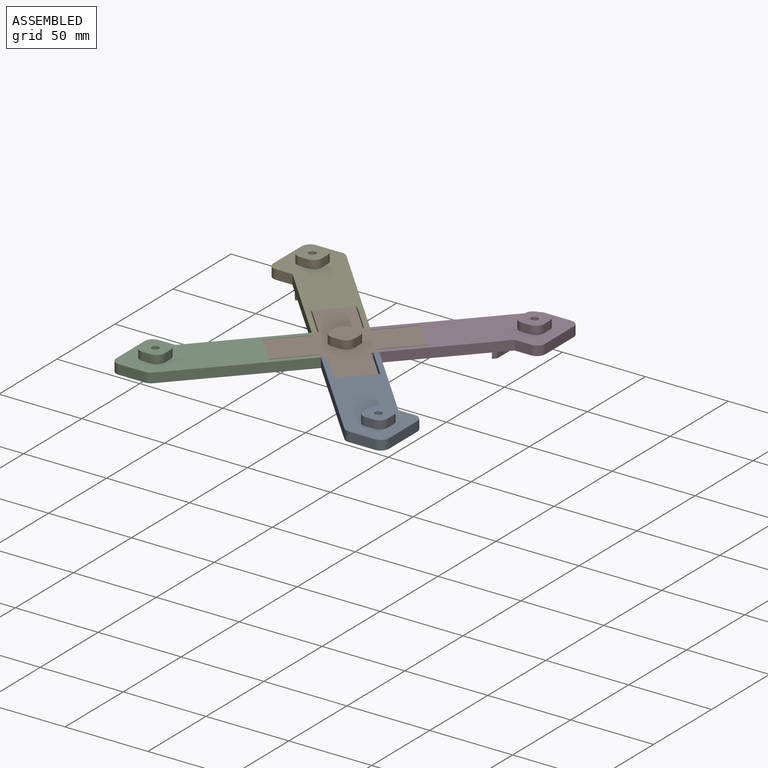
[diagram: assembled view]
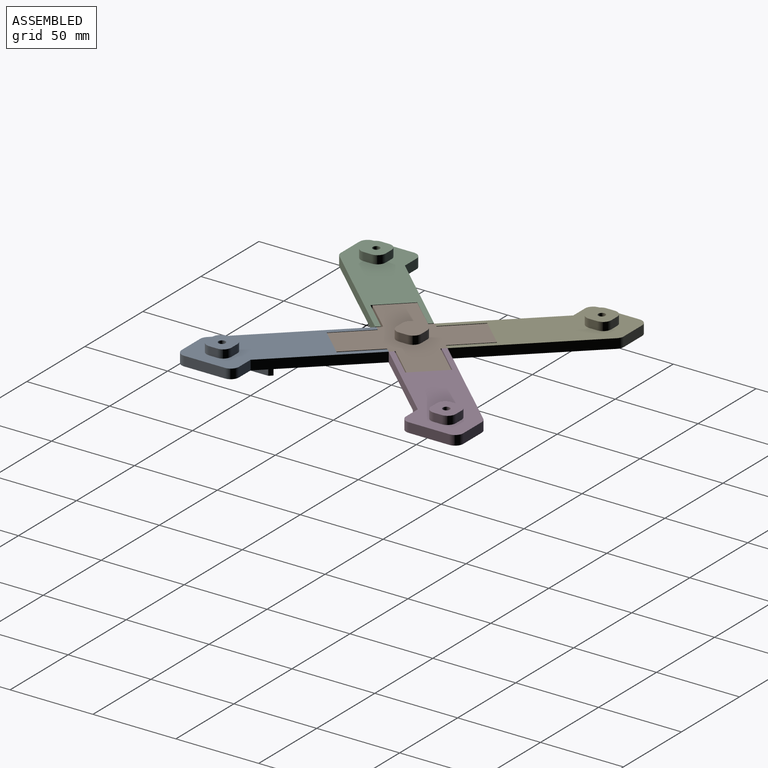
[diagram: assembled view, second angle]
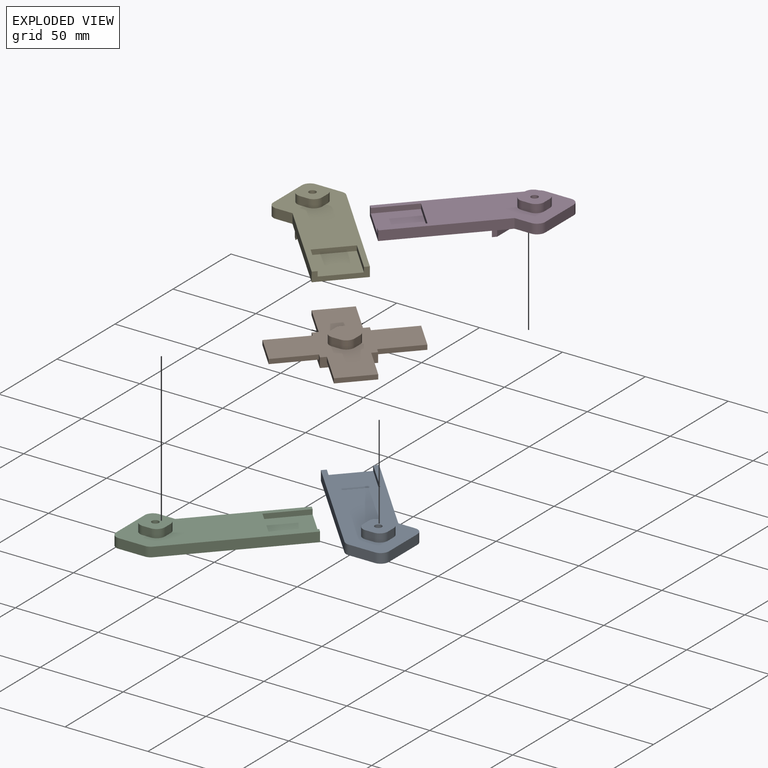
[diagram: exploded view]
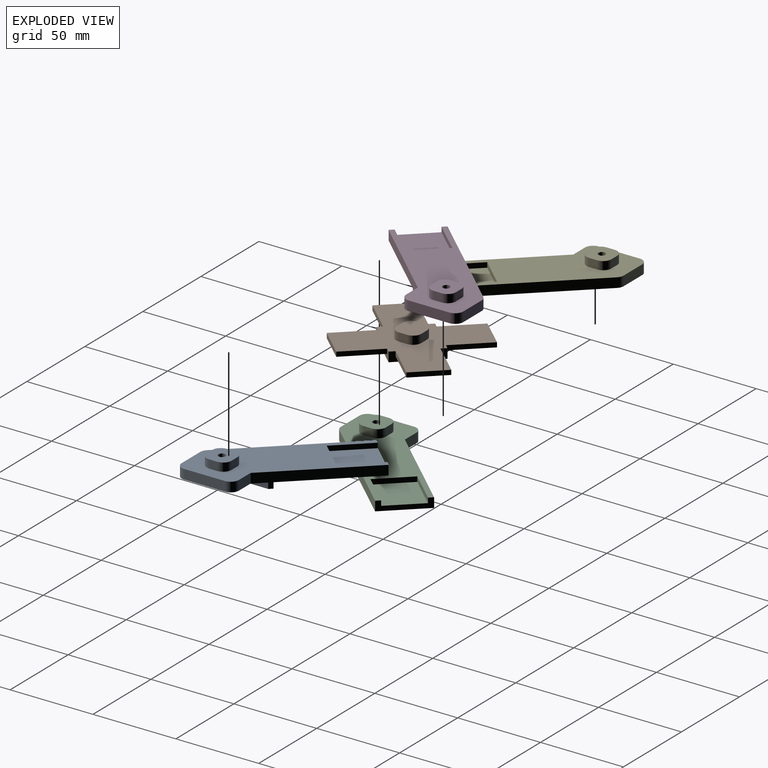
[diagram: exploded view, second angle]
ASSEMBLY  parts=5 mates=2
PART A: 29 faces, bbox 82x85x14.3 mm
  f0: plane 85x82mm, normal (0,0,1), area 2131.3mm2, adj f1,f2,f3,f4,f5,f6,f12,f13
  f1: plane 21.55x20.04mm, normal (0.73,-0.68,0), area 100.5mm2, adj f0,f5,f6,f7,f12,f14,f15
  f2: plane 15.82x5.8mm, normal (0,1,0), area 91.8mm2, adj f0,f7,f26,f28
  f3: plane 24.5x5.8mm, normal (-1,0,0), area 142.1mm2, adj f0,f7,f26,f27
  f4: plane 10x5.8mm, normal (0,-1,0), area 58mm2, adj f0,f5,f7,f27
  f5: plane 50.5x46.96mm, normal (-0.73,-0.68,0), area 409.2mm2, adj f0,f1,f4,f7,f9,f10,f11
  f6: plane 61.85x57.52mm, normal (0.73,0.68,0), area 489.9mm2, adj f0,f1,f7,f28
  f7: plane 85x82mm, normal (0,0,-1), area 2872.6mm2, adj f1,f2,f3,f4,f5,f6,f8,f9
  f8: plane 3.5x1.8mm, normal (0,1,0), area 6.3mm2, adj f7,f9,f10,f11
  f9: plane 23.89x3.5mm, normal (1,0,0), area 83.6mm2, adj f5,f7,f8,f11
  f10: plane 21.95x3.5mm, normal (-1,0,0), area 76.8mm2, adj f5,f7,f8,f11
  f11: plane 23.89x1.8mm, normal (0,0,-1), area 41.3mm2, adj f5,f8,f9,f10
  f12: plane 18.59x17.29mm, normal (-0.73,-0.68,0), area 76.2mm2, adj f0,f1,f13,f15
  f13: plane 17.15x15.94mm, normal (0.73,-0.68,0), area 70.2mm2, adj f0,f12,f14,f15
  f14: plane 18.59x17.29mm, normal (0.73,0.68,0), area 76.2mm2, adj f0,f1,f13,f15
  f15: plane 35.74x33.23mm, normal (0,0,1), area 592.9mm2, adj f1,f12,f13,f14
  f16: plane 5x5mm, normal (1,0,0), area 25mm2, adj f0,f20,f22,f25
  f17: plane 5x5mm, normal (0,1,0), area 25mm2, adj f0,f20,f22,f23
  f18: plane 5x5mm, normal (-1,0,0), area 25mm2, adj f0,f20,f23,f24
  f19: plane 5x5mm, normal (0,-1,0), area 25mm2, adj f0,f20,f24,f25
  f20: plane 15x15mm, normal (0,0,1), area 189.7mm2, adj f16,f17,f18,f19,f21,f22,f23,f24
  f21: cylinder r=2.1mm len=10.8mm, axis (0,0,1), area 142.5mm2, adj f7,f20
  f22: cylinder r=5mm len=5mm, axis (0,0,1), area 39.3mm2, adj f0,f16,f17,f20
  f23: cylinder r=5mm len=5mm, axis (0,0,-1), area 39.3mm2, adj f0,f17,f18,f20
  f24: cylinder r=5mm len=5mm, axis (0,0,1), area 39.3mm2, adj f0,f18,f19,f20
  f25: cylinder r=5mm len=5mm, axis (0,0,-1), area 39.3mm2, adj f0,f16,f19,f20
  f26: cylinder r=5mm len=5.8mm, axis (0,0,1), area 45.6mm2, adj f0,f2,f3,f7
  f27: cylinder r=5mm len=5.8mm, axis (0,0,-1), area 45.6mm2, adj f0,f3,f4,f7
  f28: cylinder r=5mm len=5.8mm, axis (0,0,-1), area 23.8mm2, adj f0,f2,f6,f7
PART B: 31 faces, bbox 69.9x75.2x10.8 mm
  f0: plane 75.15x69.88mm, normal (0,0,1), area 2930.4mm2, adj f1,f2,f3,f5,f6,f7,f8,f9
  f1: plane 16.41x15.26mm, normal (0.73,0.68,0), area 62.8mm2, adj f0,f15,f17,f18
  f2: plane 21.55x20.04mm, normal (-0.73,0.68,0), area 107.9mm2, adj f0,f4,f8,f11,f14,f16,f20
  f3: plane 16.41x15.26mm, normal (-0.73,-0.68,0), area 62.8mm2, adj f0,f12,f13,f19
  f4: plane 43.1x40.08mm, normal (0,0,-1), area 863.8mm2, adj f2,f7,f14,f16
  f5: plane 16.41x15.26mm, normal (-0.73,0.68,0), area 62.8mm2, adj f0,f8,f11,f20
  f6: plane 16.41x15.26mm, normal (0.73,-0.68,0), area 62.8mm2, adj f0,f9,f10,f21
  f7: plane 21.55x20.04mm, normal (0.73,-0.68,0), area 107.9mm2, adj f0,f4,f9,f10,f14,f16,f21
  f8: plane 18.59x17.29mm, normal (-0.73,-0.68,0), area 71.1mm2, adj f0,f2,f5,f20
  f9: plane 18.59x17.29mm, normal (0.73,0.68,0), area 71.1mm2, adj f0,f6,f7,f21
  f10: plane 18.59x17.29mm, normal (-0.73,-0.68,0), area 71.1mm2, adj f0,f6,f7,f21
  f11: plane 18.59x17.29mm, normal (0.73,0.68,0), area 71.1mm2, adj f0,f2,f5,f20
  f12: plane 18.59x17.29mm, normal (-0.73,0.68,0), area 71.1mm2, adj f0,f3,f14,f19
  f13: plane 18.59x17.29mm, normal (0.73,-0.68,0), area 71.1mm2, adj f0,f3,f14,f19
  f14: plane 21.55x20.04mm, normal (-0.73,-0.68,0), area 107.9mm2, adj f0,f2,f4,f7,f12,f13,f19
  f15: plane 18.59x17.29mm, normal (0.73,-0.68,0), area 71.1mm2, adj f0,f1,f16,f18
  f16: plane 21.55x20.04mm, normal (0.73,0.68,0), area 107.9mm2, adj f0,f2,f4,f7,f15,f17,f18
  f17: plane 18.59x17.29mm, normal (-0.73,0.68,0), area 71.1mm2, adj f0,f1,f16,f18
  f18: plane 35.01x32.55mm, normal (0,0,-1), area 567.5mm2, adj f1,f15,f16,f17
  f19: plane 35.01x32.55mm, normal (0,0,-1), area 567.5mm2, adj f3,f12,f13,f14
  f20: plane 35.01x32.55mm, normal (0,0,-1), area 567.5mm2, adj f2,f5,f8,f11
  f21: plane 35.01x32.55mm, normal (0,0,-1), area 567.5mm2, adj f6,f7,f9,f10
  f22: plane 5x5mm, normal (0,1,0), area 25mm2, adj f0,f26,f27,f30
  f23: plane 5x5mm, normal (-1,0,0), area 25mm2, adj f0,f26,f27,f28
  f24: plane 5x5mm, normal (0,-1,0), area 25mm2, adj f0,f26,f28,f29
  f25: plane 5x5mm, normal (1,0,0), area 25mm2, adj f0,f26,f29,f30
  f26: plane 15x15mm, normal (0,0,1), area 203.5mm2, adj f22,f23,f24,f25,f27,f28,f29,f30
  f27: cylinder r=5mm len=5mm, axis (0,0,1), area 39.3mm2, adj f0,f22,f23,f26
  f28: cylinder r=5mm len=5mm, axis (0,0,-1), area 39.3mm2, adj f0,f23,f24,f26
  f29: cylinder r=5mm len=5mm, axis (0,0,1), area 39.3mm2, adj f0,f24,f25,f26
  f30: cylinder r=5mm len=5mm, axis (0,0,-1), area 39.3mm2, adj f0,f22,f25,f26
PART C: 29 faces, bbox 82x85x14.3 mm
  f0: plane 85x82mm, normal (0,0,1), area 2131.3mm2, adj f1,f2,f3,f4,f5,f6,f12,f13
  f1: plane 21.55x20.04mm, normal (-0.73,-0.68,0), area 100.5mm2, adj f0,f5,f6,f7,f12,f14,f15
  f2: plane 15.82x5.8mm, normal (0,1,0), area 91.8mm2, adj f0,f7,f26,f28
  f3: plane 24.5x5.8mm, normal (1,0,0), area 142.1mm2, adj f0,f7,f26,f27
  f4: plane 10x5.8mm, normal (0,-1,0), area 58mm2, adj f0,f5,f7,f27
  f5: plane 50.5x46.96mm, normal (0.73,-0.68,0), area 409.2mm2, adj f0,f1,f4,f7,f9,f10,f11
  f6: plane 61.85x57.52mm, normal (-0.73,0.68,0), area 489.9mm2, adj f0,f1,f7,f28
  f7: plane 85x82mm, normal (0,0,-1), area 2872.6mm2, adj f1,f2,f3,f4,f5,f6,f8,f9
  f8: plane 3.5x1.8mm, normal (0,1,0), area 6.3mm2, adj f7,f9,f10,f11
  f9: plane 23.89x3.5mm, normal (-1,0,0), area 83.6mm2, adj f5,f7,f8,f11
  f10: plane 21.95x3.5mm, normal (1,0,0), area 76.8mm2, adj f5,f7,f8,f11
  f11: plane 23.89x1.8mm, normal (0,0,-1), area 41.3mm2, adj f5,f8,f9,f10
  f12: plane 18.59x17.29mm, normal (0.73,-0.68,0), area 76.2mm2, adj f0,f1,f13,f15
  f13: plane 17.15x15.94mm, normal (-0.73,-0.68,0), area 70.2mm2, adj f0,f12,f14,f15
  f14: plane 18.59x17.29mm, normal (-0.73,0.68,0), area 76.2mm2, adj f0,f1,f13,f15
  f15: plane 35.74x33.23mm, normal (0,0,1), area 592.9mm2, adj f1,f12,f13,f14
  f16: plane 5x5mm, normal (-1,0,0), area 25mm2, adj f0,f20,f22,f25
  f17: plane 5x5mm, normal (0,1,0), area 25mm2, adj f0,f20,f22,f23
  f18: plane 5x5mm, normal (1,0,0), area 25mm2, adj f0,f20,f23,f24
  f19: plane 5x5mm, normal (0,-1,0), area 25mm2, adj f0,f20,f24,f25
  f20: plane 15x15mm, normal (0,0,1), area 189.7mm2, adj f16,f17,f18,f19,f21,f22,f23,f24
  f21: cylinder r=2.1mm len=10.8mm, axis (0,0,1), area 142.5mm2, adj f7,f20
  f22: cylinder r=5mm len=5mm, axis (0,0,1), area 39.3mm2, adj f0,f16,f17,f20
  f23: cylinder r=5mm len=5mm, axis (0,0,-1), area 39.3mm2, adj f0,f17,f18,f20
  f24: cylinder r=5mm len=5mm, axis (0,0,1), area 39.3mm2, adj f0,f18,f19,f20
  f25: cylinder r=5mm len=5mm, axis (0,0,-1), area 39.3mm2, adj f0,f16,f19,f20
  f26: cylinder r=5mm len=5.8mm, axis (0,0,1), area 45.6mm2, adj f0,f2,f3,f7
  f27: cylinder r=5mm len=5.8mm, axis (0,0,-1), area 45.6mm2, adj f0,f3,f4,f7
  f28: cylinder r=5mm len=5.8mm, axis (0,0,-1), area 23.8mm2, adj f0,f2,f6,f7
PART D: same geometry as C
PART E: same geometry as A
PLACE A rot(axis=(0,0,1),180deg) t=(-11.97,-40.9,9.06)mm
PLACE B t=(-12.31,-41.27,8.86)mm fixed
PLACE C rot(axis=(0,0,1),180deg) t=(-11.97,-41.64,9.06)mm
PLACE D t=(-12.31,-41.27,8.86)mm
PLACE E t=(-12.31,-41.27,8.86)mm
MATE fastened A.f15 <-> B.f21  axis (0,0,1) through (7.37,-78.85,11.86)mm
MATE fastened C.f15 <-> B.f19  axis (0,0,1) through (-47.25,-62.43,11.86)mm
